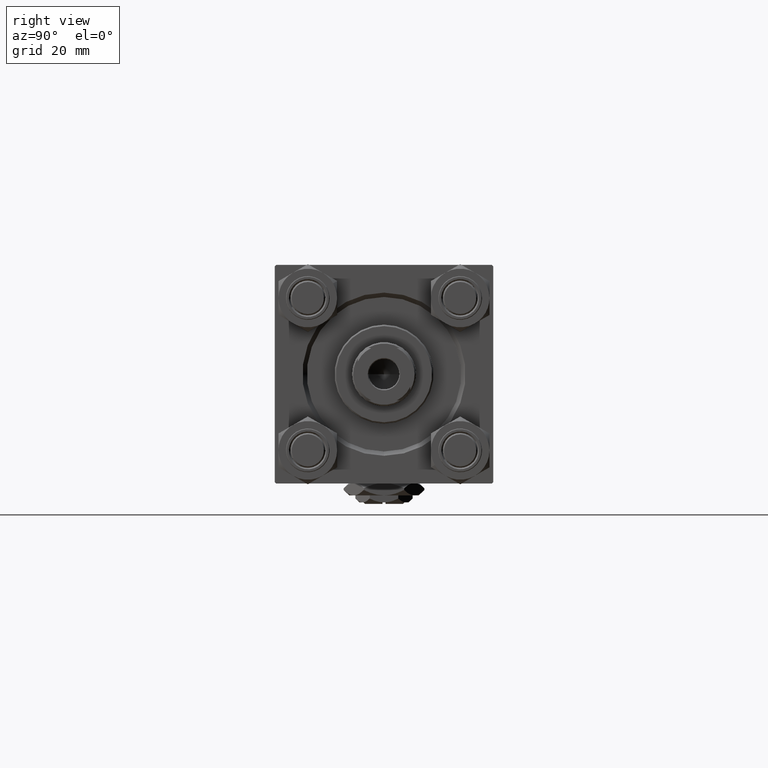
[diagram: clean part render]
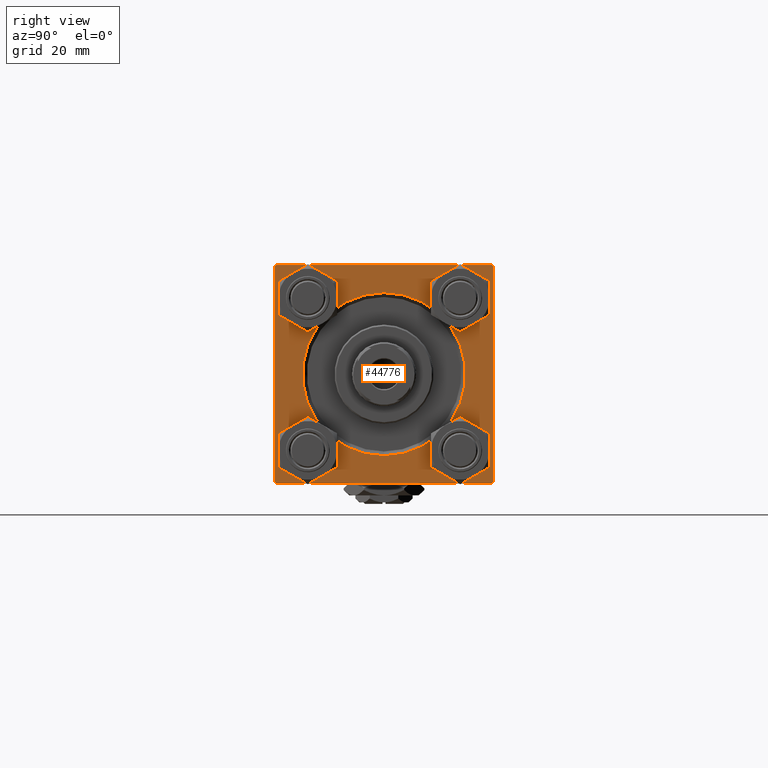
[diagram: same view with one face highlighted and labeled with its STEP entity id]
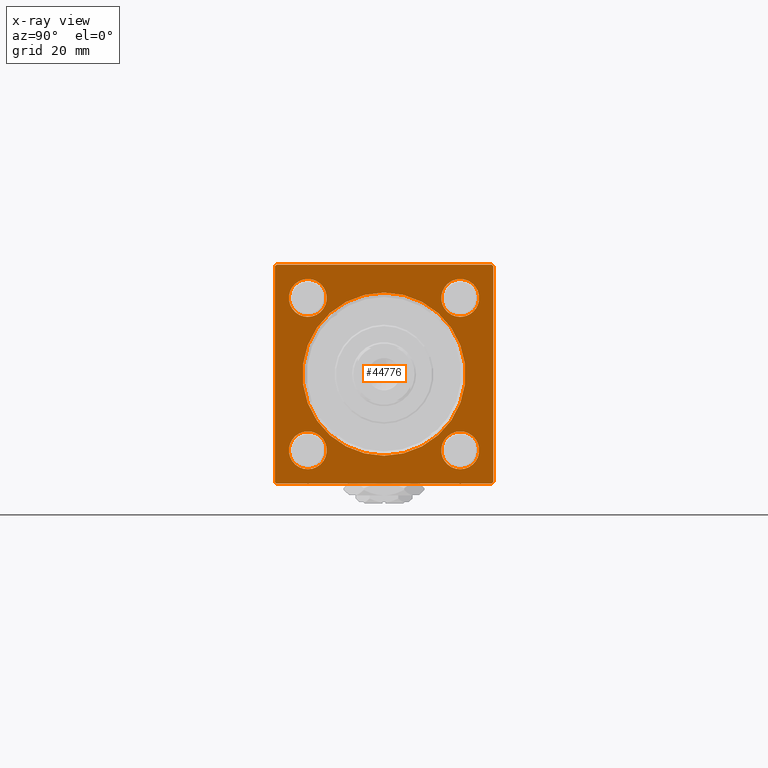
[diagram: x-ray of the same camera — body ghosted, the highlighted face saturated]
A machine part, right view. The second image highlights one B-rep face of the part: STEP entity #44776.
The next image is the same camera in x-ray: the body ghosted, the highlighted face saturated — about 0% of this face is hidden behind the body in this view.
In plain terms, the highlighted planar face has unit normal (-1, 0, 0).
Its self-contained STEP definition (entity closure, byte-faithful):
#157 = CARTESIAN_POINT ( 'NONE',  ( 154.0000000000000000, -26.14999999999999147, -32.65000000000001279 ) ) ;
#215 = EDGE_CURVE ( 'NONE', #39513, #45663, #8307, .T. ) ;
#1208 = CARTESIAN_POINT ( 'NONE',  ( 154.0000000000000000, 37.50000000000000000, 37.49999999999999289 ) ) ;
#1707 = DIRECTION ( 'NONE',  ( 0.000000000000000000, 0.000000000000000000, 1.000000000000000000 ) ) ;
#2137 = EDGE_CURVE ( 'NONE', #39513, #43300, #32606, .T. ) ;
#2533 = VERTEX_POINT ( 'NONE', #18843 ) ;
#2603 = FACE_BOUND ( 'NONE', #34294, .T. ) ;
#2671 = CIRCLE ( 'NONE', #4346, 6.500000000000002665 ) ;
#2776 = DIRECTION ( 'NONE',  ( -1.000000000000000000, -0.000000000000000000, 0.000000000000000000 ) ) ;
#2932 = AXIS2_PLACEMENT_3D ( 'NONE', #18488, #23185, #31050 ) ;
#3532 = CARTESIAN_POINT ( 'NONE',  ( 154.0000000000000000, -36.99999999999998579, -37.50000000000000000 ) ) ;
#3537 = DIRECTION ( 'NONE',  ( -1.000000000000000000, -0.000000000000000000, 0.000000000000000000 ) ) ;
#3629 = DIRECTION ( 'NONE',  ( -1.000000000000000000, -0.000000000000000000, 0.000000000000000000 ) ) ;
#3818 = FACE_OUTER_BOUND ( 'NONE', #17746, .T. ) ;
#4111 = ORIENTED_EDGE ( 'NONE', *, *, #35056, .T. ) ;
#4346 = AXIS2_PLACEMENT_3D ( 'NONE', #37847, #2776, #11124 ) ;
#4397 = DIRECTION ( 'NONE',  ( 0.000000000000000000, -0.7071067811865474617, 0.7071067811865474617 ) ) ;
#5140 = VERTEX_POINT ( 'NONE', #9490 ) ;
#5230 = ORIENTED_EDGE ( 'NONE', *, *, #215, .T. ) ;
#5706 = DIRECTION ( 'NONE',  ( -0.000000000000000000, 0.7071067811865425767, 0.7071067811865525687 ) ) ;
#6507 = AXIS2_PLACEMENT_3D ( 'NONE', #18563, #50006, #22224 ) ;
#7212 = DIRECTION ( 'NONE',  ( -1.000000000000000000, -0.000000000000000000, 0.000000000000000000 ) ) ;
#7537 = VECTOR ( 'NONE', #38138, 1000.000000000000000 ) ;
#7727 = FACE_BOUND ( 'NONE', #22262, .T. ) ;
#7929 = EDGE_CURVE ( 'NONE', #27424, #42839, #8587, .T. ) ;
#8115 = EDGE_CURVE ( 'NONE', #45663, #5140, #47301, .T. ) ;
#8187 = CIRCLE ( 'NONE', #6507, 6.500000000000002665 ) ;
#8307 = LINE ( 'NONE', #11970, #43366 ) ;
#8414 = EDGE_CURVE ( 'NONE', #33061, #44065, #50203, .T. ) ;
#8429 = AXIS2_PLACEMENT_3D ( 'NONE', #11649, #47294, #19772 ) ;
#8464 = VECTOR ( 'NONE', #39602, 1000.000000000000000 ) ;
#8587 = LINE ( 'NONE', #20625, #7537 ) ;
#8723 = CARTESIAN_POINT ( 'NONE',  ( 154.0000000000000000, 26.14999999999999858, -19.65000000000000213 ) ) ;
#9215 = ORIENTED_EDGE ( 'NONE', *, *, #10960, .T. ) ;
#9490 = CARTESIAN_POINT ( 'NONE',  ( 154.0000000000000000, -36.99999999999997158, 37.49999999999997868 ) ) ;
#9584 = CARTESIAN_POINT ( 'NONE',  ( 154.0000000000000000, 37.50000000000000000, 36.99999999999999289 ) ) ;
#10028 = CARTESIAN_POINT ( 'NONE',  ( 154.0000000000000000, 37.00000000000000000, 37.49999999999999289 ) ) ;
#10081 = CARTESIAN_POINT ( 'NONE',  ( 154.0000000000000000, -26.14999999999999147, 19.64999999999997726 ) ) ;
#10348 = DIRECTION ( 'NONE',  ( 0.000000000000000000, -1.000000000000000000, 0.000000000000000000 ) ) ;
#10426 = VERTEX_POINT ( 'NONE', #31975 ) ;
#10960 = EDGE_CURVE ( 'NONE', #49092, #26902, #2671, .T. ) ;
#11044 = EDGE_CURVE ( 'NONE', #44065, #33061, #26919, .T. ) ;
#11124 = DIRECTION ( 'NONE',  ( 0.000000000000000000, 0.000000000000000000, 1.000000000000000000 ) ) ;
#11649 = CARTESIAN_POINT ( 'NONE',  ( 154.0000000000000000, 0.000000000000000000, 0.000000000000000000 ) ) ;
#11970 = CARTESIAN_POINT ( 'NONE',  ( 154.0000000000000000, 37.00000000000000000, 37.49999999999999289 ) ) ;
#13000 = ORIENTED_EDGE ( 'NONE', *, *, #20453, .T. ) ;
#13507 = CIRCLE ( 'NONE', #39417, 6.500000000000002665 ) ;
#14045 = VECTOR ( 'NONE', #50663, 1000.000000000000114 ) ;
#14371 = EDGE_CURVE ( 'NONE', #38231, #23836, #37885, .T. ) ;
#14992 = EDGE_LOOP ( 'NONE', ( #38319, #13000 ) ) ;
#15011 = DIRECTION ( 'NONE',  ( -1.000000000000000000, -0.000000000000000000, 0.000000000000000000 ) ) ;
#15564 = CARTESIAN_POINT ( 'NONE',  ( 154.0000000000000000, 37.50000000000000000, -37.50000000000000000 ) ) ;
#16351 = VERTEX_POINT ( 'NONE', #3532 ) ;
#16728 = VERTEX_POINT ( 'NONE', #32955 ) ;
#17746 = EDGE_LOOP ( 'NONE', ( #24278, #28709, #39630, #49049, #33664, #5230, #46450, #4111 ) ) ;
#17897 = CARTESIAN_POINT ( 'NONE',  ( 154.0000000000000000, 37.50000000000000000, -36.99999999999999289 ) ) ;
#17959 = VECTOR ( 'NONE', #10348, 1000.000000000000000 ) ;
#18287 = PLANE ( 'NONE',  #8429 ) ;
#18488 = CARTESIAN_POINT ( 'NONE',  ( 154.0000000000000000, -26.14999999999999147, -26.15000000000000924 ) ) ;
#18520 = CARTESIAN_POINT ( 'NONE',  ( 154.0000000000000000, 37.50000000000000000, -36.99999999999999289 ) ) ;
#18563 = CARTESIAN_POINT ( 'NONE',  ( 154.0000000000000000, 26.14999999999999858, 26.15000000000000213 ) ) ;
#18843 = CARTESIAN_POINT ( 'NONE',  ( 154.0000000000000000, 37.00000000000000000, -37.50000000000000000 ) ) ;
#18981 = DIRECTION ( 'NONE',  ( -1.000000000000000000, -0.000000000000000000, 0.000000000000000000 ) ) ;
#19645 = EDGE_CURVE ( 'NONE', #24165, #16728, #29546, .T. ) ;
#19772 = DIRECTION ( 'NONE',  ( 0.000000000000000000, 0.000000000000000000, 1.000000000000000000 ) ) ;
#20099 = AXIS2_PLACEMENT_3D ( 'NONE', #33363, #26035, #1707 ) ;
#20360 = CIRCLE ( 'NONE', #2932, 6.500000000000002665 ) ;
#20453 = EDGE_CURVE ( 'NONE', #10426, #47592, #20360, .T. ) ;
#20476 = AXIS2_PLACEMENT_3D ( 'NONE', #45919, #15011, #34655 ) ;
#20625 = CARTESIAN_POINT ( 'NONE',  ( 154.0000000000000000, -37.50000000000000000, 37.49999999999997868 ) ) ;
#21999 = AXIS2_PLACEMENT_3D ( 'NONE', #26846, #18981, #23161 ) ;
#22224 = DIRECTION ( 'NONE',  ( 0.000000000000000000, 0.000000000000000000, 1.000000000000000000 ) ) ;
#22262 = EDGE_LOOP ( 'NONE', ( #33567, #49616 ) ) ;
#22556 = EDGE_CURVE ( 'NONE', #2533, #16351, #27102, .T. ) ;
#22644 = DIRECTION ( 'NONE',  ( 0.000000000000000000, 0.000000000000000000, 1.000000000000000000 ) ) ;
#22877 = CARTESIAN_POINT ( 'NONE',  ( 154.0000000000000000, -37.50000000000000000, 36.99999999999995026 ) ) ;
#23161 = DIRECTION ( 'NONE',  ( 0.000000000000000000, 0.000000000000000000, 1.000000000000000000 ) ) ;
#23181 = CARTESIAN_POINT ( 'NONE',  ( 154.0000000000000000, 26.14999999999999858, -26.15000000000000213 ) ) ;
#23185 = DIRECTION ( 'NONE',  ( -1.000000000000000000, -0.000000000000000000, 0.000000000000000000 ) ) ;
#23189 = DIRECTION ( 'NONE',  ( 0.000000000000000000, -1.000000000000000000, -1.850371707708594316E-16 ) ) ;
#23381 = LINE ( 'NONE', #22877, #14045 ) ;
#23439 = FACE_BOUND ( 'NONE', #49630, .T. ) ;
#23518 = CARTESIAN_POINT ( 'NONE',  ( 154.0000000000000000, -26.14999999999999147, 32.65000000000004832 ) ) ;
#23615 = LINE ( 'NONE', #39345, #8464 ) ;
#23836 = VERTEX_POINT ( 'NONE', #23518 ) ;
#24165 = VERTEX_POINT ( 'NONE', #8723 ) ;
#24278 = ORIENTED_EDGE ( 'NONE', *, *, #7929, .T. ) ;
#24288 = VECTOR ( 'NONE', #23189, 1000.000000000000000 ) ;
#24607 = CARTESIAN_POINT ( 'NONE',  ( 154.0000000000000000, -26.14999999999999147, 26.15000000000000924 ) ) ;
#24708 = CARTESIAN_POINT ( 'NONE',  ( 154.0000000000000000, 26.14999999999999858, 32.65000000000001279 ) ) ;
#25357 = CARTESIAN_POINT ( 'NONE',  ( 154.0000000000000000, -37.50000000000000711, -37.00000000000000711 ) ) ;
#26035 = DIRECTION ( 'NONE',  ( -1.000000000000000000, -0.000000000000000000, 0.000000000000000000 ) ) ;
#26413 = FACE_BOUND ( 'NONE', #40005, .T. ) ;
#26553 = ORIENTED_EDGE ( 'NONE', *, *, #8414, .T. ) ;
#26846 = CARTESIAN_POINT ( 'NONE',  ( 154.0000000000000000, -26.14999999999999147, 26.15000000000000924 ) ) ;
#26902 = VERTEX_POINT ( 'NONE', #46105 ) ;
#26919 = CIRCLE ( 'NONE', #31910, 27.99999999999999645 ) ;
#27102 = LINE ( 'NONE', #15564, #17959 ) ;
#27399 = AXIS2_PLACEMENT_3D ( 'NONE', #30859, #3629, #46579 ) ;
#27424 = VERTEX_POINT ( 'NONE', #29684 ) ;
#28028 = EDGE_CURVE ( 'NONE', #23836, #38231, #50759, .T. ) ;
#28224 = CIRCLE ( 'NONE', #27399, 6.500000000000002665 ) ;
#28360 = ORIENTED_EDGE ( 'NONE', *, *, #14371, .T. ) ;
#28709 = ORIENTED_EDGE ( 'NONE', *, *, #45813, .T. ) ;
#29546 = CIRCLE ( 'NONE', #20476, 6.500000000000002665 ) ;
#29683 = ORIENTED_EDGE ( 'NONE', *, *, #11044, .T. ) ;
#29684 = CARTESIAN_POINT ( 'NONE',  ( 154.0000000000000000, -37.50000000000000000, 36.99999999999995026 ) ) ;
#30296 = LINE ( 'NONE', #18520, #36946 ) ;
#30389 = ORIENTED_EDGE ( 'NONE', *, *, #35698, .T. ) ;
#30859 = CARTESIAN_POINT ( 'NONE',  ( 154.0000000000000000, -26.14999999999999147, -26.15000000000000924 ) ) ;
#31050 = DIRECTION ( 'NONE',  ( 0.000000000000000000, 0.000000000000000000, 1.000000000000000000 ) ) ;
#31111 = EDGE_CURVE ( 'NONE', #47592, #10426, #28224, .T. ) ;
#31910 = AXIS2_PLACEMENT_3D ( 'NONE', #51457, #3537, #22644 ) ;
#31975 = CARTESIAN_POINT ( 'NONE',  ( 154.0000000000000000, -26.14999999999999147, -19.65000000000000924 ) ) ;
#32606 = LINE ( 'NONE', #1208, #42627 ) ;
#32719 = DIRECTION ( 'NONE',  ( 0.000000000000000000, 0.000000000000000000, 1.000000000000000000 ) ) ;
#32955 = CARTESIAN_POINT ( 'NONE',  ( 154.0000000000000000, 26.14999999999999858, -32.65000000000000568 ) ) ;
#33061 = VERTEX_POINT ( 'NONE', #36938 ) ;
#33363 = CARTESIAN_POINT ( 'NONE',  ( 154.0000000000000000, 0.000000000000000000, 0.000000000000000000 ) ) ;
#33567 = ORIENTED_EDGE ( 'NONE', *, *, #47528, .T. ) ;
#33664 = ORIENTED_EDGE ( 'NONE', *, *, #2137, .F. ) ;
#34294 = EDGE_LOOP ( 'NONE', ( #28360, #51001 ) ) ;
#34655 = DIRECTION ( 'NONE',  ( 0.000000000000000000, 0.000000000000000000, 1.000000000000000000 ) ) ;
#35056 = EDGE_CURVE ( 'NONE', #5140, #27424, #23381, .T. ) ;
#35698 = EDGE_CURVE ( 'NONE', #26902, #49092, #8187, .T. ) ;
#36267 = CARTESIAN_POINT ( 'NONE',  ( 154.0000000000000000, 0.000000000000000000, -27.99999999999999645 ) ) ;
#36938 = CARTESIAN_POINT ( 'NONE',  ( 154.0000000000000000, 3.429011037612588881E-15, 27.99999999999999645 ) ) ;
#36946 = VECTOR ( 'NONE', #5706, 999.9999999999998863 ) ;
#37355 = AXIS2_PLACEMENT_3D ( 'NONE', #24607, #43744, #32719 ) ;
#37847 = CARTESIAN_POINT ( 'NONE',  ( 154.0000000000000000, 26.14999999999999858, 26.15000000000000213 ) ) ;
#37885 = CIRCLE ( 'NONE', #21999, 6.500000000000037303 ) ;
#38138 = DIRECTION ( 'NONE',  ( 0.000000000000000000, -9.251858538542972814E-17, -1.000000000000000000 ) ) ;
#38231 = VERTEX_POINT ( 'NONE', #10081 ) ;
#38319 = ORIENTED_EDGE ( 'NONE', *, *, #31111, .T. ) ;
#39345 = CARTESIAN_POINT ( 'NONE',  ( 154.0000000000000000, -36.99999999999998579, -37.50000000000000000 ) ) ;
#39417 = AXIS2_PLACEMENT_3D ( 'NONE', #23181, #7212, #39425 ) ;
#39425 = DIRECTION ( 'NONE',  ( 0.000000000000000000, 0.000000000000000000, 1.000000000000000000 ) ) ;
#39513 = VERTEX_POINT ( 'NONE', #9584 ) ;
#39602 = DIRECTION ( 'NONE',  ( 0.000000000000000000, 0.7071067811865671127, -0.7071067811865279218 ) ) ;
#39630 = ORIENTED_EDGE ( 'NONE', *, *, #22556, .F. ) ;
#40005 = EDGE_LOOP ( 'NONE', ( #29683, #26553 ) ) ;
#42138 = FACE_BOUND ( 'NONE', #14992, .T. ) ;
#42627 = VECTOR ( 'NONE', #49112, 1000.000000000000000 ) ;
#42839 = VERTEX_POINT ( 'NONE', #25357 ) ;
#43300 = VERTEX_POINT ( 'NONE', #17897 ) ;
#43366 = VECTOR ( 'NONE', #4397, 1000.000000000000114 ) ;
#43744 = DIRECTION ( 'NONE',  ( -1.000000000000000000, -0.000000000000000000, 0.000000000000000000 ) ) ;
#44065 = VERTEX_POINT ( 'NONE', #36267 ) ;
#44776 = ADVANCED_FACE ( 'NONE', ( #42138, #7727, #23439, #2603, #26413, #3818 ), #18287, .F. ) ;
#45663 = VERTEX_POINT ( 'NONE', #10028 ) ;
#45813 = EDGE_CURVE ( 'NONE', #42839, #16351, #23615, .T. ) ;
#45919 = CARTESIAN_POINT ( 'NONE',  ( 154.0000000000000000, 26.14999999999999858, -26.15000000000000213 ) ) ;
#46105 = CARTESIAN_POINT ( 'NONE',  ( 154.0000000000000000, 26.14999999999999858, 19.64999999999999858 ) ) ;
#46450 = ORIENTED_EDGE ( 'NONE', *, *, #8115, .T. ) ;
#46579 = DIRECTION ( 'NONE',  ( 0.000000000000000000, 0.000000000000000000, 1.000000000000000000 ) ) ;
#47294 = DIRECTION ( 'NONE',  ( -1.000000000000000000, -0.000000000000000000, 0.000000000000000000 ) ) ;
#47301 = LINE ( 'NONE', #50718, #24288 ) ;
#47528 = EDGE_CURVE ( 'NONE', #16728, #24165, #13507, .T. ) ;
#47592 = VERTEX_POINT ( 'NONE', #157 ) ;
#48623 = EDGE_CURVE ( 'NONE', #2533, #43300, #30296, .T. ) ;
#49049 = ORIENTED_EDGE ( 'NONE', *, *, #48623, .T. ) ;
#49092 = VERTEX_POINT ( 'NONE', #24708 ) ;
#49112 = DIRECTION ( 'NONE',  ( 0.000000000000000000, 0.000000000000000000, -1.000000000000000000 ) ) ;
#49616 = ORIENTED_EDGE ( 'NONE', *, *, #19645, .T. ) ;
#49630 = EDGE_LOOP ( 'NONE', ( #30389, #9215 ) ) ;
#50006 = DIRECTION ( 'NONE',  ( -1.000000000000000000, -0.000000000000000000, 0.000000000000000000 ) ) ;
#50203 = CIRCLE ( 'NONE', #20099, 27.99999999999999645 ) ;
#50663 = DIRECTION ( 'NONE',  ( -0.000000000000000000, -0.7071067811865474617, -0.7071067811865474617 ) ) ;
#50718 = CARTESIAN_POINT ( 'NONE',  ( 154.0000000000000000, 37.50000000000000000, 37.49999999999999289 ) ) ;
#50759 = CIRCLE ( 'NONE', #37355, 6.500000000000037303 ) ;
#51001 = ORIENTED_EDGE ( 'NONE', *, *, #28028, .T. ) ;
#51457 = CARTESIAN_POINT ( 'NONE',  ( 154.0000000000000000, 0.000000000000000000, 0.000000000000000000 ) ) ;